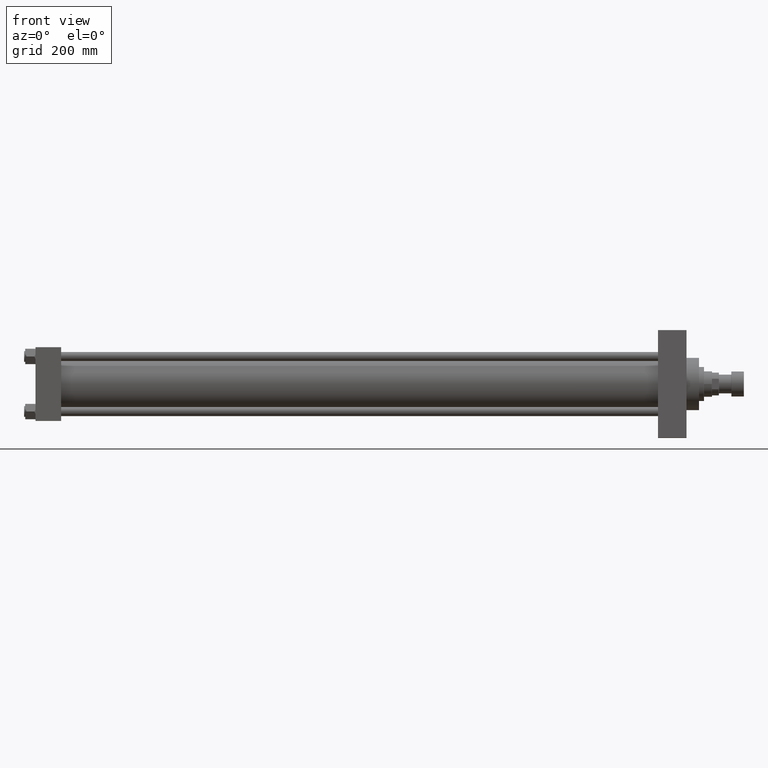
[diagram: clean part render]
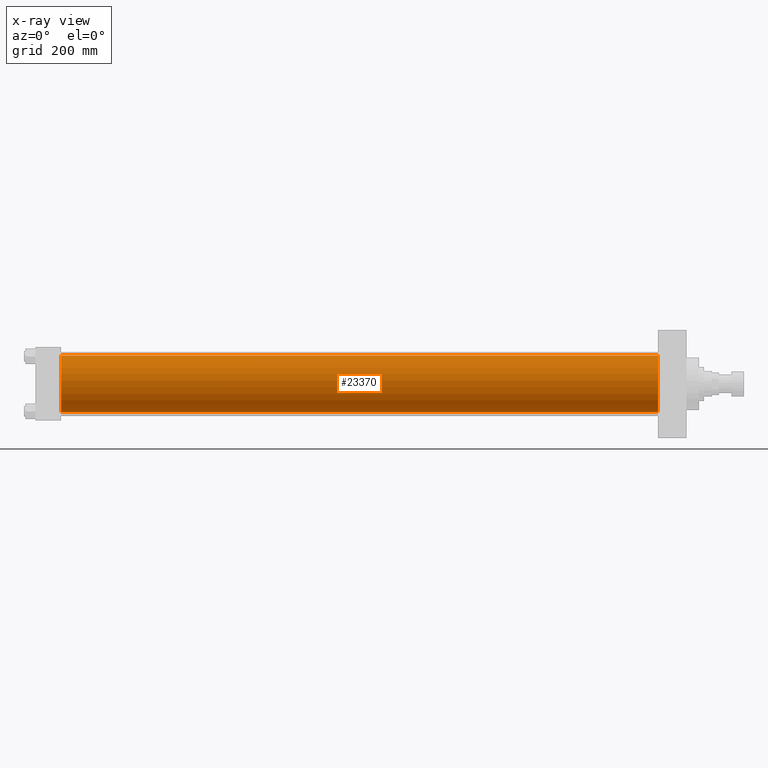
[diagram: x-ray — body ghosted, one internal face saturated and labeled with its STEP entity id]
A machine part, front view, then the same camera in x-ray: the body is ghosted and one INTERNAL B-rep face — a face not visible from any outside direction — is saturated and labeled: STEP entity #23370.
In plain terms, the highlighted cylindrical surface (edge-blend (fillet) strip) has radius 50 mm, axis along (-1, -0, -0).
Its self-contained STEP definition (entity closure, byte-faithful):
#740 = LINE ( 'NONE', #975, #44382 ) ;
#975 = CARTESIAN_POINT ( 'NONE',  ( 1095.999999999999773, -2.602085213965210642E-15, 50.00000000000000000 ) ) ;
#5310 = AXIS2_PLACEMENT_3D ( 'NONE', #39719, #35829, #28748 ) ;
#5364 = CARTESIAN_POINT ( 'NONE',  ( 1095.999999999999773, -2.602085213965210642E-15, 50.00000000000000000 ) ) ;
#5871 = DIRECTION ( 'NONE',  ( 0.000000000000000000, 0.000000000000000000, -1.000000000000000000 ) ) ;
#6282 = CARTESIAN_POINT ( 'NONE',  ( 45.00000000000000000, -2.602085213965210642E-15, 50.00000000000000000 ) ) ;
#10603 = CARTESIAN_POINT ( 'NONE',  ( 45.00000000000000000, 3.521148781771555838E-15, -50.00000000000000000 ) ) ;
#11936 = CARTESIAN_POINT ( 'NONE',  ( 45.00000000000000000, -2.602085213965210642E-15, 0.000000000000000000 ) ) ;
#12968 = LINE ( 'NONE', #42646, #31086 ) ;
#15955 = ORIENTED_EDGE ( 'NONE', *, *, #45109, .F. ) ;
#16841 = DIRECTION ( 'NONE',  ( -1.000000000000000000, -0.000000000000000000, -0.000000000000000000 ) ) ;
#19214 = DIRECTION ( 'NONE',  ( 1.000000000000000000, 0.000000000000000000, 0.000000000000000000 ) ) ;
#20340 = CIRCLE ( 'NONE', #27365, 50.00000000000000000 ) ;
#20574 = ORIENTED_EDGE ( 'NONE', *, *, #37255, .T. ) ;
#20628 = CIRCLE ( 'NONE', #25294, 50.00000000000000000 ) ;
#22407 = DIRECTION ( 'NONE',  ( 0.000000000000000000, 0.000000000000000000, -1.000000000000000000 ) ) ;
#23370 = ADVANCED_FACE ( 'NONE', ( #28257 ), #32171, .F. ) ;
#25145 = CARTESIAN_POINT ( 'NONE',  ( 1095.999999999999773, 3.521148781771555838E-15, -50.00000000000000000 ) ) ;
#25294 = AXIS2_PLACEMENT_3D ( 'NONE', #31411, #27747, #5871 ) ;
#26411 = VERTEX_POINT ( 'NONE', #25145 ) ;
#26646 = EDGE_CURVE ( 'NONE', #38909, #26411, #20628, .T. ) ;
#27188 = VERTEX_POINT ( 'NONE', #10603 ) ;
#27365 = AXIS2_PLACEMENT_3D ( 'NONE', #11936, #19214, #22407 ) ;
#27747 = DIRECTION ( 'NONE',  ( 1.000000000000000000, 0.000000000000000000, 0.000000000000000000 ) ) ;
#28257 = FACE_OUTER_BOUND ( 'NONE', #32898, .T. ) ;
#28748 = DIRECTION ( 'NONE',  ( 0.000000000000000000, 0.000000000000000000, 1.000000000000000000 ) ) ;
#29610 = ORIENTED_EDGE ( 'NONE', *, *, #38455, .F. ) ;
#31086 = VECTOR ( 'NONE', #16841, 1000.000000000000000 ) ;
#31411 = CARTESIAN_POINT ( 'NONE',  ( 1095.999999999999773, -2.602085213965210642E-15, 0.000000000000000000 ) ) ;
#32171 = CYLINDRICAL_SURFACE ( 'NONE', #5310, 50.00000000000000000 ) ;
#32390 = VERTEX_POINT ( 'NONE', #6282 ) ;
#32898 = EDGE_LOOP ( 'NONE', ( #45554, #20574, #15955, #29610 ) ) ;
#35829 = DIRECTION ( 'NONE',  ( -1.000000000000000000, -0.000000000000000000, -0.000000000000000000 ) ) ;
#37255 = EDGE_CURVE ( 'NONE', #26411, #27188, #12968, .T. ) ;
#38455 = EDGE_CURVE ( 'NONE', #38909, #32390, #740, .T. ) ;
#38909 = VERTEX_POINT ( 'NONE', #5364 ) ;
#39719 = CARTESIAN_POINT ( 'NONE',  ( 1095.999999999999773, -2.602085213965210642E-15, 0.000000000000000000 ) ) ;
#41126 = DIRECTION ( 'NONE',  ( -1.000000000000000000, -0.000000000000000000, -0.000000000000000000 ) ) ;
#42646 = CARTESIAN_POINT ( 'NONE',  ( 1095.999999999999773, 3.521148781771555838E-15, -50.00000000000000000 ) ) ;
#44382 = VECTOR ( 'NONE', #41126, 1000.000000000000000 ) ;
#45109 = EDGE_CURVE ( 'NONE', #32390, #27188, #20340, .T. ) ;
#45554 = ORIENTED_EDGE ( 'NONE', *, *, #26646, .T. ) ;